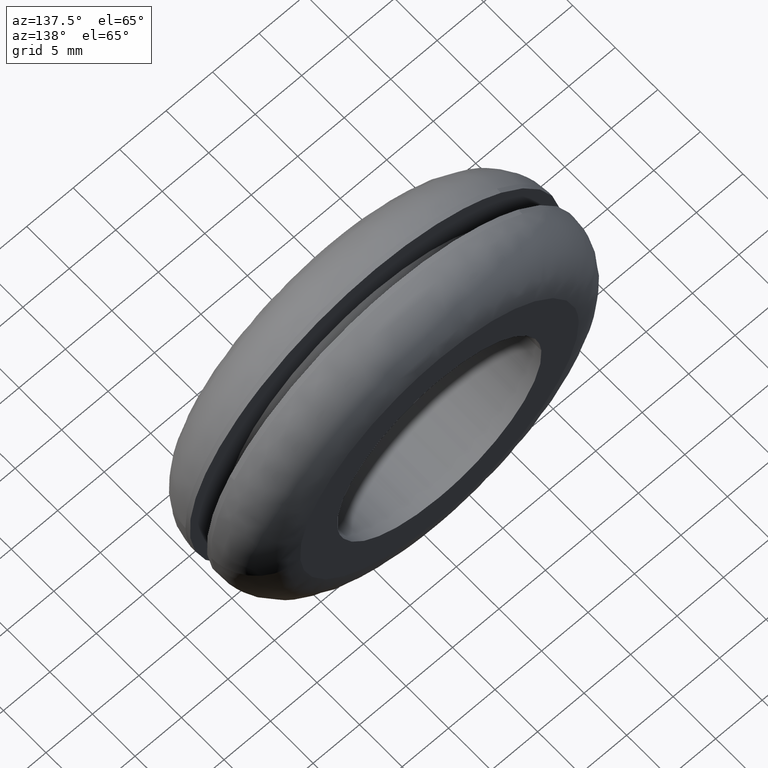
[diagram: clean part render]
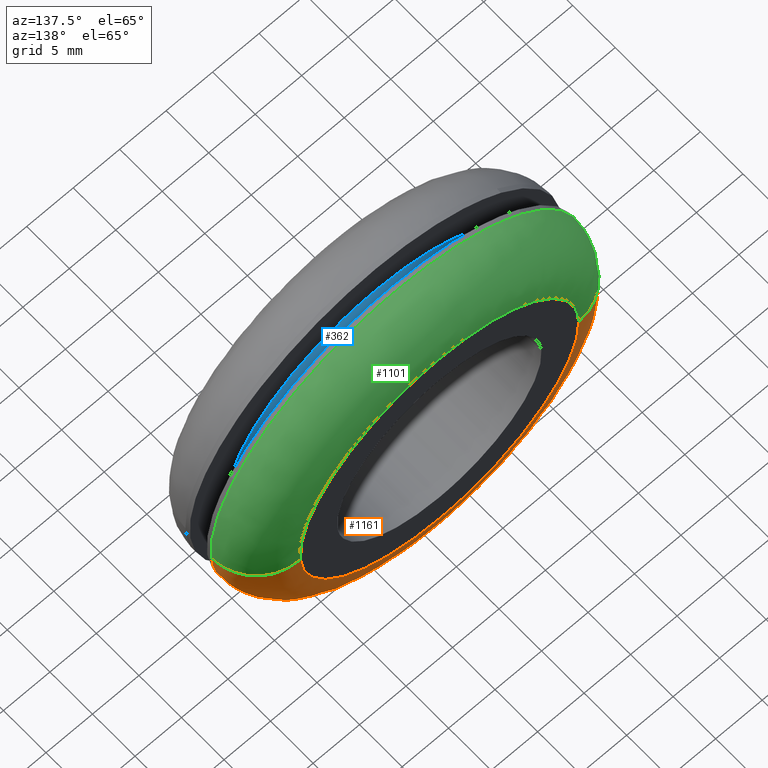
[diagram: same view with three faces highlighted in distinct colors, each labeled with its STEP entity id]
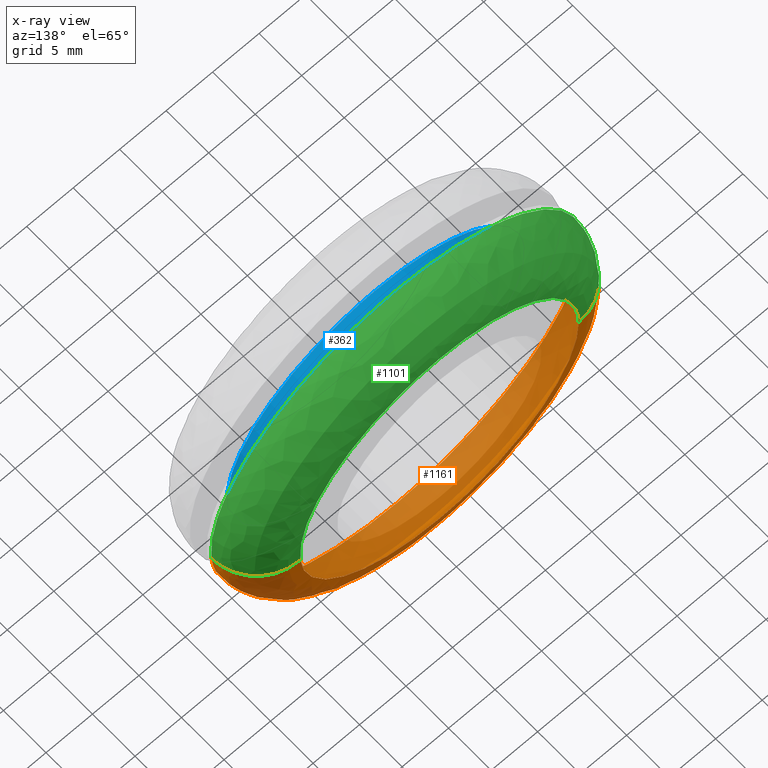
[diagram: x-ray of the same camera — body ghosted, the three highlighted faces saturated]
A machine part, auxiliary view with three faces highlighted in distinct colors.
The next image is the same camera in x-ray (body ghosted, the three faces saturated) — at least one of them is partly hidden behind the body in this view.
Their STEP definitions:

[orange] entity #1161 — the highlighted face is a freeform B-spline surface patch.
#563=CARTESIAN_POINT('',(19.951313476808409,8.000000000047315,-1.394665031512212));
#564=VERTEX_POINT('',#563);
#614=CARTESIAN_POINT('',(-19.998420884076179,8.000000000047249,0.251320797678057));
#615=VERTEX_POINT('',#614);
#629=CARTESIAN_POINT('',(0.0,8.0,-20.0));
#630=VERTEX_POINT('',#629);
#631=CARTESIAN_POINT('',(-19.998420884076179,8.000000000047249,0.251320797678057));
#632=CARTESIAN_POINT('',(-20.0,8.0,0.125665359848808));
#633=CARTESIAN_POINT('',(-20.0,8.0,-3.673819E-016));
#634=CARTESIAN_POINT('',(-19.999999999999996,8.0,-19.999999999999996));
#635=CARTESIAN_POINT('',(0.0,8.0,-20.0));
#643=(BOUNDED_CURVE()B_SPLINE_CURVE(2,(#631,#632,#633,#634,#635),.UNSPECIFIED.,.F.,.U.)B_SPLINE_CURVE_WITH_KNOTS((3,2,3),(0.747784295921535,0.750000000000000,1.0),.UNSPECIFIED.)CURVE()GEOMETRIC_REPRESENTATION_ITEM()RATIONAL_B_SPLINE_CURVE((0.994854295643567,0.997404141202081,1.0,0.707106781186548,1.0))REPRESENTATION_ITEM(''));
#644=EDGE_CURVE('',#615,#630,#643,.T.);
#646=CARTESIAN_POINT('',(0.0,8.0,-20.0));
#647=CARTESIAN_POINT('',(18.650736945326056,8.0,-20.000000000000004));
#648=CARTESIAN_POINT('',(19.951313476808416,8.000000000047315,-1.394665031512212));
#656=(BOUNDED_CURVE()B_SPLINE_CURVE(2,(#646,#647,#648),.UNSPECIFIED.,.F.,.U.)B_SPLINE_CURVE_WITH_KNOTS((3,3),(0.0,0.237833686535076),.UNSPECIFIED.)CURVE()GEOMETRIC_REPRESENTATION_ITEM()RATIONAL_B_SPLINE_CURVE((1.0,0.721360504033887,0.972879876386943))REPRESENTATION_ITEM(''));
#657=EDGE_CURVE('',#630,#564,#656,.T.);
#1037=CARTESIAN_POINT('',(14.963485108165189,13.0,-1.045998773761495));
#1038=VERTEX_POINT('',#1037);
#1039=CARTESIAN_POINT('',(14.963485108165189,13.000000000000007,-1.045998773761495));
#1040=CARTESIAN_POINT('',(19.951313476714247,12.999999998867199,-1.394665031502231));
#1041=CARTESIAN_POINT('',(19.951313476808405,8.000000000047315,-1.394665031512212));
#1049=(BOUNDED_CURVE()B_SPLINE_CURVE(2,(#1039,#1040,#1041),.UNSPECIFIED.,.F.,.U.)B_SPLINE_CURVE_WITH_KNOTS((3,3),(-1.734750791422985,-0.265249208361264),.UNSPECIFIED.)CURVE()GEOMETRIC_REPRESENTATION_ITEM()RATIONAL_B_SPLINE_CURVE((0.869031711793707,0.614498216577333,0.869031711868447))REPRESENTATION_ITEM(''));
#1050=EDGE_CURVE('',#1038,#564,#1049,.T.);
#1069=CARTESIAN_POINT('',(-14.998815663185610,13.0,0.188490598263874));
#1070=VERTEX_POINT('',#1069);
#1084=CARTESIAN_POINT('',(-14.998815663185612,12.999999999999993,0.188490598263874));
#1085=CARTESIAN_POINT('',(-19.998420883981815,12.999999999742931,0.251320797665851));
#1086=CARTESIAN_POINT('',(-19.998420884076175,8.000000000047251,0.251320797678057));
#1094=(BOUNDED_CURVE()B_SPLINE_CURVE(2,(#1084,#1085,#1086),.UNSPECIFIED.,.F.,.U.)B_SPLINE_CURVE_WITH_KNOTS((3,3),(-1.734750791604978,-0.265249208361238),.UNSPECIFIED.)CURVE()GEOMETRIC_REPRESENTATION_ITEM()RATIONAL_B_SPLINE_CURVE((0.889029723557509,0.628638946230250,0.889029723569482))REPRESENTATION_ITEM(''));
#1095=EDGE_CURVE('',#1070,#615,#1094,.T.);
#1102=CARTESIAN_POINT('',(-14.651157044897706,12.987896790906447,0.184121561227898));
#1103=CARTESIAN_POINT('',(-14.835278606125597,12.987896790906451,-14.467035483669797));
#1104=CARTESIAN_POINT('',(-0.184121561227899,12.987896790906447,-14.651157044897706));
#1105=CARTESIAN_POINT('',(13.651748992647734,12.987896790906454,-14.825032874603165));
#1106=CARTESIAN_POINT('',(14.616645418911970,12.987896790906452,-1.021753493443732));
#1107=CARTESIAN_POINT('',(-20.386076148718455,13.387686324445310,0.256192473830592));
#1108=CARTESIAN_POINT('',(-20.642268622549054,13.387686324445308,-20.129883674887868));
#1109=CARTESIAN_POINT('',(-0.256192473830594,13.387686324445310,-20.386076148718455));
#1110=CARTESIAN_POINT('',(18.995468663290858,13.387686324445310,-20.628012392657073));
#1111=CARTESIAN_POINT('',(20.338055597631246,13.387686324445305,-1.421699628140766));
#1112=CARTESIAN_POINT('',(-19.986318659623301,7.652314346392412,0.251168708623572));
#1113=CARTESIAN_POINT('',(-20.237487368246864,7.652314346392411,-19.735149950999720));
#1114=CARTESIAN_POINT('',(-0.251168708623573,7.652314346392412,-19.986318659623301));
#1115=CARTESIAN_POINT('',(18.622980068544759,7.652314346392411,-20.223510693607412));
#1116=CARTESIAN_POINT('',(19.939239759827270,7.652314346392411,-1.393821037408198));
#1124=(BOUNDED_SURFACE()B_SPLINE_SURFACE(2,2,((#1102,#1107,#1112),(#1103,#1108,#1113),(#1104,#1109,#1114),(#1105,#1110,#1115),(#1106,#1111,#1116)),.UNSPECIFIED.,.F.,.F.,.U.)B_SPLINE_SURFACE_WITH_KNOTS((3,2,3),(3,3),(0.0,33.117031784517522,64.909382297654332),(0.0,9.111870323671282),.UNSPECIFIED.)GEOMETRIC_REPRESENTATION_ITEM()RATIONAL_B_SPLINE_SURFACE(((0.916342144029433,0.601326543189608,0.916342109178844),(0.647951743930232,0.425202076396837,0.647951719287144),(0.916342144029433,0.601326543189608,0.916342109178844),(0.658687359934200,0.432247055068548,0.658687334882812),(0.895729761301814,0.587800184139924,0.895729727235161)))REPRESENTATION_ITEM('')SURFACE());
#1125=ORIENTED_EDGE('',*,*,#657,.F.);
#1126=ORIENTED_EDGE('',*,*,#644,.F.);
#1127=ORIENTED_EDGE('',*,*,#1095,.F.);
#1128=CARTESIAN_POINT('',(0.0,13.0,-15.0));
#1129=VERTEX_POINT('',#1128);
#1130=CARTESIAN_POINT('',(-14.998815663185615,13.000000000000004,0.188490598263874));
#1131=CARTESIAN_POINT('',(-15.000000000000004,12.999999999999998,0.094249019890323));
#1132=CARTESIAN_POINT('',(-15.0,13.0,-3.673819E-016));
#1133=CARTESIAN_POINT('',(-14.999999999999996,13.0,-14.999999999999996));
#1134=CARTESIAN_POINT('',(0.0,13.0,-15.0));
#1142=(BOUNDED_CURVE()B_SPLINE_CURVE(2,(#1130,#1131,#1132,#1133,#1134),.UNSPECIFIED.,.F.,.U.)B_SPLINE_CURVE_WITH_KNOTS((3,2,3),(0.747784295921447,0.750000000000000,1.0),.UNSPECIFIED.)CURVE()GEOMETRIC_REPRESENTATION_ITEM()RATIONAL_B_SPLINE_CURVE((0.994854295643366,0.997404141201979,1.0,0.707106781186547,1.0))REPRESENTATION_ITEM(''));
#1143=EDGE_CURVE('',#1070,#1129,#1142,.T.);
#1144=ORIENTED_EDGE('',*,*,#1143,.T.);
#1145=CARTESIAN_POINT('',(0.0,13.0,-15.0));
#1146=CARTESIAN_POINT('',(13.988052708829915,13.0,-14.999999999999996));
#1147=CARTESIAN_POINT('',(14.963485108165187,13.000000000000005,-1.045998773761494));
#1155=(BOUNDED_CURVE()B_SPLINE_CURVE(2,(#1145,#1146,#1147),.UNSPECIFIED.,.F.,.U.)B_SPLINE_CURVE_WITH_KNOTS((3,3),(0.0,0.237833686533057),.UNSPECIFIED.)CURVE()GEOMETRIC_REPRESENTATION_ITEM()RATIONAL_B_SPLINE_CURVE((1.0,0.721360504036253,0.972879876382673))REPRESENTATION_ITEM(''));
#1156=EDGE_CURVE('',#1129,#1038,#1155,.T.);
#1157=ORIENTED_EDGE('',*,*,#1156,.T.);
#1158=ORIENTED_EDGE('',*,*,#1050,.T.);
#1159=EDGE_LOOP('',(#1125,#1126,#1127,#1144,#1157,#1158));
#1160=FACE_OUTER_BOUND('',#1159,.T.);
#1161=ADVANCED_FACE('',(#1160),#1124,.T.);

[blue] entity #362 — the highlighted face is a freeform B-spline surface patch.
#260=CARTESIAN_POINT('',(15.888152421818658,7.550000000000003,-1.888547754508136));
#261=CARTESIAN_POINT('',(15.942201847177685,7.550000000000003,-1.433835658207643));
#262=CARTESIAN_POINT('',(15.970156774749871,7.550000000000003,-0.976776632557712));
#263=CARTESIAN_POINT('',(16.946933407307572,7.550000000000003,14.993380142192160));
#264=CARTESIAN_POINT('',(0.976776632557712,7.550000000000003,15.970156774749871));
#265=CARTESIAN_POINT('',(-14.993380142192160,7.550000000000003,16.946933407307572));
#266=CARTESIAN_POINT('',(-15.970156774749871,7.550000000000003,0.976776632557711));
#267=CARTESIAN_POINT('',(15.888152421818658,5.448749999999897,-1.888547754508136));
#268=CARTESIAN_POINT('',(15.942201847177685,5.448749999999897,-1.433835658207643));
#269=CARTESIAN_POINT('',(15.970156774749871,5.448749999999896,-0.976776632557712));
#270=CARTESIAN_POINT('',(16.946933407307572,5.448749999999896,14.993380142192160));
#271=CARTESIAN_POINT('',(0.976776632557712,5.448749999999896,15.970156774749871));
#272=CARTESIAN_POINT('',(-14.993380142192160,5.448749999999896,16.946933407307572));
#273=CARTESIAN_POINT('',(-15.970156774749871,5.448749999999896,0.976776632557711));
#281=(BOUNDED_SURFACE()B_SPLINE_SURFACE(2,1,((#260,#267),(#261,#268),(#262,#269),(#263,#270),(#264,#271),(#265,#272),(#266,#273)),.UNSPECIFIED.,.F.,.F.,.U.)B_SPLINE_SURFACE_WITH_KNOTS((3,2,2,3),(2,2),(0.0,1.060386719675124,27.570054711553190,54.079722703431273),(0.0,2.101250000000108),.UNSPECIFIED.)GEOMETRIC_REPRESENTATION_ITEM()RATIONAL_B_SPLINE_SURFACE(((0.977505800795127,0.977505800795127),(0.988284271247462,0.988284271247462),(1.0,1.0),(0.707106781186548,0.707106781186548),(1.0,1.0),(0.707106781186548,0.707106781186548),(1.0,1.0)))REPRESENTATION_ITEM('')SURFACE());
#282=CARTESIAN_POINT('',(15.888154325586020,5.499999999999696,-1.888531738177008));
#283=VERTEX_POINT('',#282);
#284=CARTESIAN_POINT('',(0.0,5.499999999999900,16.0));
#285=VERTEX_POINT('',#284);
#286=CARTESIAN_POINT('',(15.888154325586028,5.499999999999696,-1.888531738177008));
#287=CARTESIAN_POINT('',(15.999999999999998,5.499999999999901,-0.947577821604906));
#288=CARTESIAN_POINT('',(16.0,5.499999999999900,-3.673819E-016));
#289=CARTESIAN_POINT('',(15.999999999999998,5.499999999999901,15.999999999999998));
#290=CARTESIAN_POINT('',(0.0,5.499999999999900,16.0));
#298=(BOUNDED_CURVE()B_SPLINE_CURVE(2,(#286,#287,#288,#289,#290),.UNSPECIFIED.,.F.,.U.)B_SPLINE_CURVE_WITH_KNOTS((3,2,3),(0.229562643882349,0.250000000000000,0.500000000000000),.UNSPECIFIED.)CURVE()GEOMETRIC_REPRESENTATION_ITEM()RATIONAL_B_SPLINE_CURVE((0.956027088113870,0.976056147930657,1.0,0.707106781186548,1.0))REPRESENTATION_ITEM(''));
#299=EDGE_CURVE('',#283,#285,#298,.T.);
#300=ORIENTED_EDGE('',*,*,#299,.F.);
#301=CARTESIAN_POINT('',(15.888154302092399,7.500000000000000,-1.888531935829760));
#302=VERTEX_POINT('',#301);
#303=CARTESIAN_POINT('',(15.888154302092399,7.500000000000000,-1.888531935829760));
#304=CARTESIAN_POINT('',(15.888154325586020,5.499999999999696,-1.888531738177008));
#305=QUASI_UNIFORM_CURVE('',1,(#303,#304),.UNSPECIFIED.,.F.,.U.);
#306=EDGE_CURVE('',#302,#283,#305,.T.);
#307=ORIENTED_EDGE('',*,*,#306,.F.);
#308=CARTESIAN_POINT('',(0.0,7.500000000000000,16.0));
#309=VERTEX_POINT('',#308);
#310=CARTESIAN_POINT('',(15.888154302092396,7.500000000000000,-1.888531935829760));
#311=CARTESIAN_POINT('',(16.000000000000004,7.500000000000000,-0.947577921476031));
#312=CARTESIAN_POINT('',(16.0,7.500000000000000,-3.673819E-016));
#313=CARTESIAN_POINT('',(15.999999999999998,7.500000000000000,15.999999999999998));
#314=CARTESIAN_POINT('',(0.0,7.500000000000000,16.0));
#322=(BOUNDED_CURVE()B_SPLINE_CURVE(2,(#310,#311,#312,#313,#314),.UNSPECIFIED.,.F.,.U.)B_SPLINE_CURVE_WITH_KNOTS((3,2,3),(0.229562641779904,0.250000000000000,0.500000000000000),.UNSPECIFIED.)CURVE()GEOMETRIC_REPRESENTATION_ITEM()RATIONAL_B_SPLINE_CURVE((0.956027083992986,0.976056145467490,1.0,0.707106781186548,1.0))REPRESENTATION_ITEM(''));
#323=EDGE_CURVE('',#302,#309,#322,.T.);
#324=ORIENTED_EDGE('',*,*,#323,.T.);
#325=CARTESIAN_POINT('',(-15.970157387610151,7.500000000000000,0.976766612277504));
#326=VERTEX_POINT('',#325);
#327=CARTESIAN_POINT('',(0.0,7.500000000000000,16.0));
#328=CARTESIAN_POINT('',(-15.051306531893854,7.499999999999999,15.999999999999998));
#329=CARTESIAN_POINT('',(-15.970157387610147,7.500000000000001,0.976766612277504));
#337=(BOUNDED_CURVE()B_SPLINE_CURVE(2,(#327,#328,#329),.UNSPECIFIED.,.F.,.U.)B_SPLINE_CURVE_WITH_KNOTS((3,3),(0.500000000000000,0.739333070504357),.UNSPECIFIED.)CURVE()GEOMETRIC_REPRESENTATION_ITEM()RATIONAL_B_SPLINE_CURVE((1.0,0.719603866445888,0.976072273700219))REPRESENTATION_ITEM(''));
#338=EDGE_CURVE('',#309,#326,#337,.T.);
#339=ORIENTED_EDGE('',*,*,#338,.T.);
#340=CARTESIAN_POINT('',(-15.970157395259861,5.500000000000182,0.976766487203239));
#341=VERTEX_POINT('',#340);
#342=CARTESIAN_POINT('',(-15.970157387610151,7.500000000000000,0.976766612277504));
#343=CARTESIAN_POINT('',(-15.970157395259861,5.500000000000182,0.976766487203239));
#344=QUASI_UNIFORM_CURVE('',1,(#342,#343),.UNSPECIFIED.,.F.,.U.);
#345=EDGE_CURVE('',#326,#341,#344,.T.);
#346=ORIENTED_EDGE('',*,*,#345,.T.);
#347=CARTESIAN_POINT('',(0.0,5.499999999999900,16.0));
#348=CARTESIAN_POINT('',(-15.051306649992174,5.499999999999899,16.000000000000007));
#349=CARTESIAN_POINT('',(-15.970157395259864,5.500000000000182,0.976766487203239));
#357=(BOUNDED_CURVE()B_SPLINE_CURVE(2,(#347,#348,#349),.UNSPECIFIED.,.F.,.U.)B_SPLINE_CURVE_WITH_KNOTS((3,3),(0.500000000000000,0.739333071855701),.UNSPECIFIED.)CURVE()GEOMETRIC_REPRESENTATION_ITEM()RATIONAL_B_SPLINE_CURVE((1.0,0.719603864862690,0.976072276596408))REPRESENTATION_ITEM(''));
#358=EDGE_CURVE('',#285,#341,#357,.T.);
#359=ORIENTED_EDGE('',*,*,#358,.F.);
#360=EDGE_LOOP('',(#300,#307,#324,#339,#346,#359));
#361=FACE_OUTER_BOUND('',#360,.T.);
#362=ADVANCED_FACE('',(#361),#281,.T.);

[green] entity #1101 — the highlighted face is a freeform B-spline surface patch.
#464=CARTESIAN_POINT('',(17.498930339779282,8.000000000000441,9.684391409042613));
#465=VERTEX_POINT('',#464);
#466=CARTESIAN_POINT('',(0.0,8.0,20.0));
#467=VERTEX_POINT('',#466);
#468=CARTESIAN_POINT('',(17.498930339779282,8.000000000000441,9.684391409042613));
#469=CARTESIAN_POINT('',(11.789987605707738,8.000000000000002,20.0));
#470=CARTESIAN_POINT('',(0.0,8.0,20.0));
#478=(BOUNDED_CURVE()B_SPLINE_CURVE(2,(#468,#469,#470),.UNSPECIFIED.,.F.,.U.)B_SPLINE_CURVE_WITH_KNOTS((3,3),(0.332484260513294,0.500000000000000),.UNSPECIFIED.)CURVE()GEOMETRIC_REPRESENTATION_ITEM()RATIONAL_B_SPLINE_CURVE((0.870495160132448,0.803743103439292,1.0))REPRESENTATION_ITEM(''));
#479=EDGE_CURVE('',#465,#467,#478,.T.);
#481=CARTESIAN_POINT('',(-13.511803338491800,8.000000000012431,14.745547481930860));
#482=VERTEX_POINT('',#481);
#483=CARTESIAN_POINT('',(0.0,8.0,20.0));
#484=CARTESIAN_POINT('',(-7.777574001685777,8.000000000000002,20.000000000000007));
#485=CARTESIAN_POINT('',(-13.511803338491793,8.000000000012431,14.745547481930860));
#493=(BOUNDED_CURVE()B_SPLINE_CURVE(2,(#483,#484,#485),.UNSPECIFIED.,.F.,.U.)B_SPLINE_CURVE_WITH_KNOTS((3,3),(0.500000000000000,0.618415200752421),.UNSPECIFIED.)CURVE()GEOMETRIC_REPRESENTATION_ITEM()RATIONAL_B_SPLINE_CURVE((1.0,0.861267962780729,0.853959781866357))REPRESENTATION_ITEM(''));
#494=EDGE_CURVE('',#467,#482,#493,.T.);
#563=CARTESIAN_POINT('',(19.951313476808409,8.000000000047315,-1.394665031512212));
#564=VERTEX_POINT('',#563);
#565=CARTESIAN_POINT('',(19.951313476808412,8.000000000047315,-1.394665031512212));
#566=CARTESIAN_POINT('',(20.000000000000004,8.0,-0.698182317497621));
#567=CARTESIAN_POINT('',(20.0,8.0,-3.673819E-016));
#568=CARTESIAN_POINT('',(20.0,8.0,5.165156083809353));
#569=CARTESIAN_POINT('',(17.498930339779282,8.000000000000441,9.684391409042613));
#577=(BOUNDED_CURVE()B_SPLINE_CURVE(2,(#565,#566,#567,#568,#569),.UNSPECIFIED.,.F.,.U.)B_SPLINE_CURVE_WITH_KNOTS((3,2,3),(0.237833686535076,0.250000000000000,0.332484260513294),.UNSPECIFIED.)CURVE()GEOMETRIC_REPRESENTATION_ITEM()RATIONAL_B_SPLINE_CURVE((0.972879876386944,0.985746277152660,1.0,0.903363677747256,0.870495160132448))REPRESENTATION_ITEM(''));
#578=EDGE_CURVE('',#564,#465,#577,.T.);
#614=CARTESIAN_POINT('',(-19.998420884076179,8.000000000047249,0.251320797678057));
#615=VERTEX_POINT('',#614);
#616=CARTESIAN_POINT('',(-13.511803338491793,8.000000000012431,14.745547481930860));
#617=CARTESIAN_POINT('',(-19.889716728950877,8.000000000026553,8.901267264633471));
#618=CARTESIAN_POINT('',(-19.998420884076179,8.000000000047249,0.251320797678057));
#626=(BOUNDED_CURVE()B_SPLINE_CURVE(2,(#616,#617,#618),.UNSPECIFIED.,.F.,.U.)B_SPLINE_CURVE_WITH_KNOTS((3,3),(0.618415200752421,0.747784295921534),.UNSPECIFIED.)CURVE()GEOMETRIC_REPRESENTATION_ITEM()RATIONAL_B_SPLINE_CURVE((0.853959781866357,0.845975564078294,0.994854295643565))REPRESENTATION_ITEM(''));
#627=EDGE_CURVE('',#482,#615,#626,.T.);
#1006=CARTESIAN_POINT('',(14.616645475301910,12.987896790906460,-1.021752686759736));
#1007=CARTESIAN_POINT('',(14.645887570004270,12.987896790906447,-0.603430976664588));
#1008=CARTESIAN_POINT('',(14.651157044897706,12.987896790906447,-0.184121561227900));
#1009=CARTESIAN_POINT('',(14.835278606125597,12.987896790906451,14.467035483669797));
#1010=CARTESIAN_POINT('',(0.184121561227901,12.987896790906447,14.651157044897706));
#1011=CARTESIAN_POINT('',(-14.467035483669795,12.987896790906451,14.835278606125597));
#1012=CARTESIAN_POINT('',(-14.651157044897706,12.987896790906447,0.184121561227901));
#1013=CARTESIAN_POINT('',(20.338055676093969,13.387686324445307,-1.421698505695534));
#1014=CARTESIAN_POINT('',(20.378744037260493,13.387686324445305,-0.839632651747728));
#1015=CARTESIAN_POINT('',(20.386076148718455,13.387686324445310,-0.256192473830595));
#1016=CARTESIAN_POINT('',(20.642268622549057,13.387686324445308,20.129883674887868));
#1017=CARTESIAN_POINT('',(0.256192473830596,13.387686324445310,20.386076148718455));
#1018=CARTESIAN_POINT('',(-20.129883674887864,13.387686324445308,20.642268622549057));
#1019=CARTESIAN_POINT('',(-20.386076148718455,13.387686324445310,0.256192473830598));
#1020=CARTESIAN_POINT('',(19.939239836751405,7.652314346392411,-1.393819936973377));
#1021=CARTESIAN_POINT('',(19.979130326028475,7.652314346392410,-0.823168009990462));
#1022=CARTESIAN_POINT('',(19.986318659623301,7.652314346392412,-0.251168708623575));
#1023=CARTESIAN_POINT('',(20.237487368246882,7.652314346392411,19.735149950999720));
#1024=CARTESIAN_POINT('',(0.251168708623576,7.652314346392412,19.986318659623301));
#1025=CARTESIAN_POINT('',(-19.735149950999720,7.652314346392411,20.237487368246882));
#1026=CARTESIAN_POINT('',(-19.986318659623301,7.652314346392412,0.251168708623577));
#1034=(BOUNDED_SURFACE()B_SPLINE_SURFACE(2,2,((#1006,#1013,#1020),(#1007,#1014,#1021),(#1008,#1015,#1022),(#1009,#1016,#1023),(#1010,#1017,#1024),(#1011,#1018,#1025),(#1012,#1019,#1026)),.UNSPECIFIED.,.F.,.F.,.U.)B_SPLINE_SURFACE_WITH_KNOTS((3,2,2,3),(3,3),(0.0,1.324680008066195,34.441711792583710,67.558743577101225),(0.0,9.111870323671287),.UNSPECIFIED.)GEOMETRIC_REPRESENTATION_ITEM()RATIONAL_B_SPLINE_SURFACE(((0.895729780140252,0.587800196502176,0.895729746073599),(0.905606538263746,0.594281571236513,0.905606503821457),(0.916342144029433,0.601326543189608,0.916342109178844),(0.647951743930232,0.425202076396837,0.647951719287144),(0.916342144029433,0.601326543189608,0.916342109178844),(0.647951743930232,0.425202076396837,0.647951719287144),(0.916342144029433,0.601326543189608,0.916342109178844)))REPRESENTATION_ITEM('')SURFACE());
#1035=ORIENTED_EDGE('',*,*,#479,.F.);
#1036=ORIENTED_EDGE('',*,*,#578,.F.);
#1037=CARTESIAN_POINT('',(14.963485108165189,13.0,-1.045998773761495));
#1038=VERTEX_POINT('',#1037);
#1039=CARTESIAN_POINT('',(14.963485108165189,13.000000000000007,-1.045998773761495));
#1040=CARTESIAN_POINT('',(19.951313476714247,12.999999998867199,-1.394665031502231));
#1041=CARTESIAN_POINT('',(19.951313476808405,8.000000000047315,-1.394665031512212));
#1049=(BOUNDED_CURVE()B_SPLINE_CURVE(2,(#1039,#1040,#1041),.UNSPECIFIED.,.F.,.U.)B_SPLINE_CURVE_WITH_KNOTS((3,3),(-1.734750791422985,-0.265249208361264),.UNSPECIFIED.)CURVE()GEOMETRIC_REPRESENTATION_ITEM()RATIONAL_B_SPLINE_CURVE((0.869031711793707,0.614498216577333,0.869031711868447))REPRESENTATION_ITEM(''));
#1050=EDGE_CURVE('',#1038,#564,#1049,.T.);
#1051=ORIENTED_EDGE('',*,*,#1050,.F.);
#1052=CARTESIAN_POINT('',(0.0,13.0,15.0));
#1053=VERTEX_POINT('',#1052);
#1054=CARTESIAN_POINT('',(14.963485108165184,13.000000000000004,-1.045998773761495));
#1055=CARTESIAN_POINT('',(14.999999999999998,12.999999999999998,-0.523636738211376));
#1056=CARTESIAN_POINT('',(15.0,13.0,-3.673819E-016));
#1057=CARTESIAN_POINT('',(14.999999999999996,13.0,14.999999999999996));
#1058=CARTESIAN_POINT('',(0.0,13.0,15.0));
#1066=(BOUNDED_CURVE()B_SPLINE_CURVE(2,(#1054,#1055,#1056,#1057,#1058),.UNSPECIFIED.,.F.,.U.)B_SPLINE_CURVE_WITH_KNOTS((3,2,3),(0.237833686533057,0.250000000000000,0.500000000000000),.UNSPECIFIED.)CURVE()GEOMETRIC_REPRESENTATION_ITEM()RATIONAL_B_SPLINE_CURVE((0.972879876382673,0.985746277150295,1.0,0.707106781186547,1.0))REPRESENTATION_ITEM(''));
#1067=EDGE_CURVE('',#1038,#1053,#1066,.T.);
#1068=ORIENTED_EDGE('',*,*,#1067,.T.);
#1069=CARTESIAN_POINT('',(-14.998815663185610,13.0,0.188490598263874));
#1070=VERTEX_POINT('',#1069);
#1071=CARTESIAN_POINT('',(0.0,13.0,15.0));
#1072=CARTESIAN_POINT('',(-14.812678948586044,13.0,15.000000000000002));
#1073=CARTESIAN_POINT('',(-14.998815663185615,13.0,0.188490598263874));
#1081=(BOUNDED_CURVE()B_SPLINE_CURVE(2,(#1071,#1072,#1073),.UNSPECIFIED.,.F.,.U.)B_SPLINE_CURVE_WITH_KNOTS((3,3),(0.500000000000000,0.747784295921447),.UNSPECIFIED.)CURVE()GEOMETRIC_REPRESENTATION_ITEM()RATIONAL_B_SPLINE_CURVE((1.0,0.709702639984569,0.994854295643365))REPRESENTATION_ITEM(''));
#1082=EDGE_CURVE('',#1053,#1070,#1081,.T.);
#1083=ORIENTED_EDGE('',*,*,#1082,.T.);
#1084=CARTESIAN_POINT('',(-14.998815663185612,12.999999999999993,0.188490598263874));
#1085=CARTESIAN_POINT('',(-19.998420883981815,12.999999999742931,0.251320797665851));
#1086=CARTESIAN_POINT('',(-19.998420884076175,8.000000000047251,0.251320797678057));
#1094=(BOUNDED_CURVE()B_SPLINE_CURVE(2,(#1084,#1085,#1086),.UNSPECIFIED.,.F.,.U.)B_SPLINE_CURVE_WITH_KNOTS((3,3),(-1.734750791604978,-0.265249208361238),.UNSPECIFIED.)CURVE()GEOMETRIC_REPRESENTATION_ITEM()RATIONAL_B_SPLINE_CURVE((0.889029723557509,0.628638946230250,0.889029723569482))REPRESENTATION_ITEM(''));
#1095=EDGE_CURVE('',#1070,#615,#1094,.T.);
#1096=ORIENTED_EDGE('',*,*,#1095,.T.);
#1097=ORIENTED_EDGE('',*,*,#627,.F.);
#1098=ORIENTED_EDGE('',*,*,#494,.F.);
#1099=EDGE_LOOP('',(#1035,#1036,#1051,#1068,#1083,#1096,#1097,#1098));
#1100=FACE_OUTER_BOUND('',#1099,.T.);
#1101=ADVANCED_FACE('',(#1100),#1034,.T.);